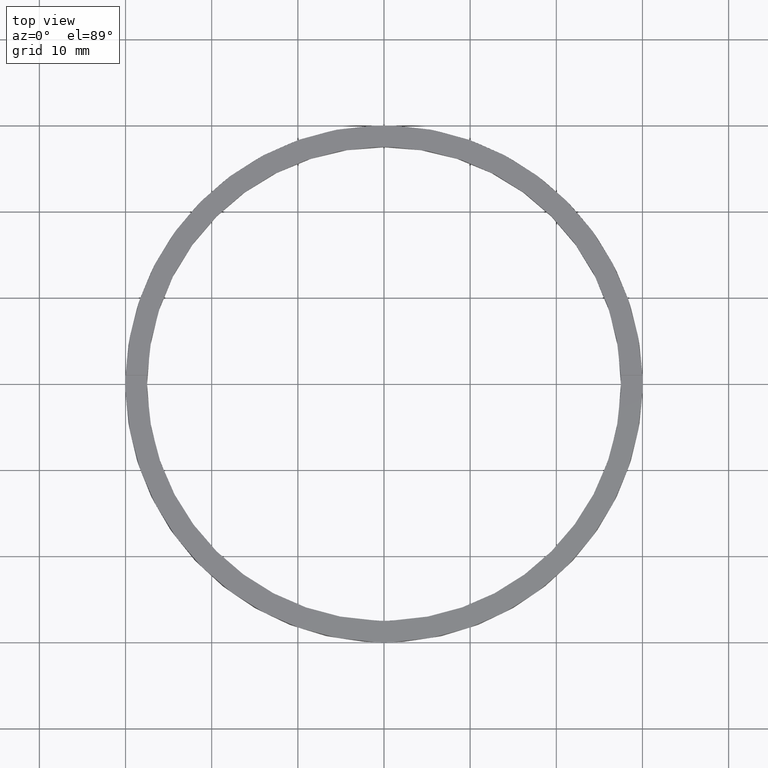
[diagram: clean part render]
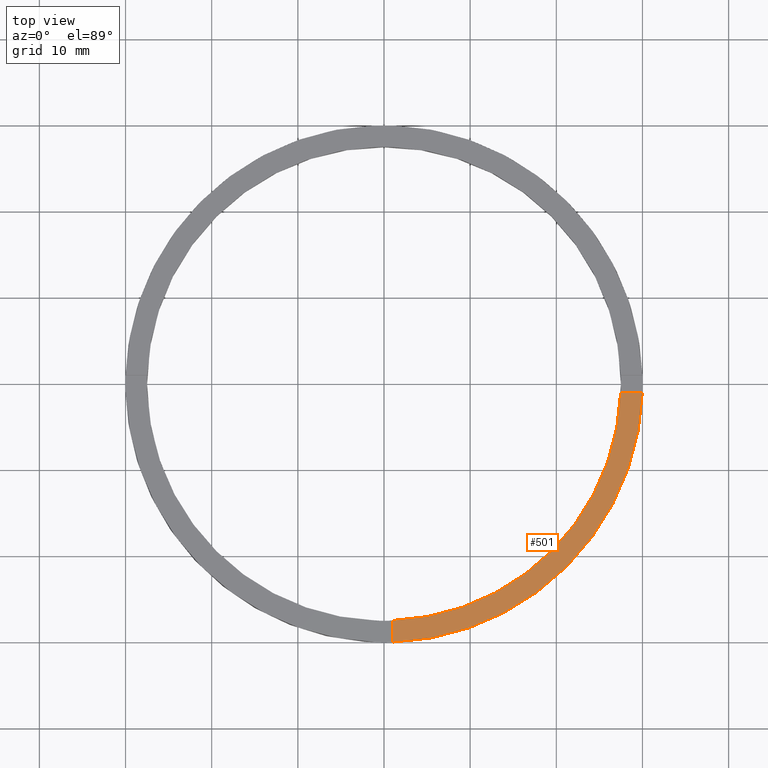
[diagram: same view with one face highlighted and labeled with its STEP entity id]
A machine part, top view. The second image highlights one B-rep face of the part: STEP entity #501.
In plain terms, the highlighted planar face has unit normal (0, 0, 1).
Its self-contained STEP definition (entity closure, byte-faithful):
#32 = CARTESIAN_POINT ( 'NONE',  ( 0.000000000000000000, 0.000000000000000000, 3.000000000000000000 ) ) ;
#57 = EDGE_CURVE ( 'NONE', #380, #435, #680, .T. ) ;
#91 = CARTESIAN_POINT ( 'NONE',  ( 0.000000000000000000, 0.000000000000000000, 3.000000000000000000 ) ) ;
#115 = DIRECTION ( 'NONE',  ( 1.000000000000000000, 0.000000000000000000, 0.000000000000000000 ) ) ;
#116 = DIRECTION ( 'NONE',  ( 0.000000000000000000, 0.000000000000000000, 1.000000000000000000 ) ) ;
#121 = PLANE ( 'NONE',  #470 ) ;
#134 = EDGE_CURVE ( 'NONE', #225, #670, #184, .T. ) ;
#173 = CARTESIAN_POINT ( 'NONE',  ( 0.000000000000000000, 0.000000000000000000, 3.000000000000000000 ) ) ;
#184 = CIRCLE ( 'NONE', #337, 30.00000000000000000 ) ;
#201 = CARTESIAN_POINT ( 'NONE',  ( 0.9999999999998397948, -20.00000000000017764, 3.000000000000000000 ) ) ;
#225 = VERTEX_POINT ( 'NONE', #228 ) ;
#228 = CARTESIAN_POINT ( 'NONE',  ( 0.9999999999998411271, -29.98332870112990278, 3.000000000000000000 ) ) ;
#245 = VECTOR ( 'NONE', #354, 1000.000000000000000 ) ;
#255 = FACE_OUTER_BOUND ( 'NONE', #407, .T. ) ;
#281 = CARTESIAN_POINT ( 'NONE',  ( 0.9999999999998406830, -27.48181216732259458, 3.000000000000000000 ) ) ;
#313 = LINE ( 'NONE', #201, #245 ) ;
#323 = DIRECTION ( 'NONE',  ( 1.000000000000000000, 0.000000000000000000, -0.000000000000000000 ) ) ;
#333 = EDGE_CURVE ( 'NONE', #435, #670, #478, .T. ) ;
#337 = AXIS2_PLACEMENT_3D ( 'NONE', #32, #494, #115 ) ;
#342 = CARTESIAN_POINT ( 'NONE',  ( 19.99999999999999289, -1.000000000000156763, 3.000000000000000000 ) ) ;
#354 = DIRECTION ( 'NONE',  ( -1.301042606982605074E-16, 1.000000000000000000, -0.000000000000000000 ) ) ;
#364 = ORIENTED_EDGE ( 'NONE', *, *, #333, .F. ) ;
#380 = VERTEX_POINT ( 'NONE', #281 ) ;
#401 = EDGE_CURVE ( 'NONE', #225, #380, #313, .T. ) ;
#405 = DIRECTION ( 'NONE',  ( 1.000000000000000000, 0.000000000000000000, 0.000000000000000000 ) ) ;
#407 = EDGE_LOOP ( 'NONE', ( #364, #495, #507, #499 ) ) ;
#435 = VERTEX_POINT ( 'NONE', #597 ) ;
#470 = AXIS2_PLACEMENT_3D ( 'NONE', #173, #116, #323 ) ;
#472 = AXIS2_PLACEMENT_3D ( 'NONE', #91, #783, #405 ) ;
#478 = LINE ( 'NONE', #342, #733 ) ;
#494 = DIRECTION ( 'NONE',  ( 0.000000000000000000, 0.000000000000000000, 1.000000000000000000 ) ) ;
#495 = ORIENTED_EDGE ( 'NONE', *, *, #57, .F. ) ;
#499 = ORIENTED_EDGE ( 'NONE', *, *, #134, .T. ) ;
#501 = ADVANCED_FACE ( 'NONE', ( #255 ), #121, .T. ) ;
#507 = ORIENTED_EDGE ( 'NONE', *, *, #401, .F. ) ;
#516 = DIRECTION ( 'NONE',  ( 1.000000000000000000, 6.505213034913025371E-17, 0.000000000000000000 ) ) ;
#571 = CARTESIAN_POINT ( 'NONE',  ( 29.98332870112989212, -1.000000000000156097, 3.000000000000000000 ) ) ;
#597 = CARTESIAN_POINT ( 'NONE',  ( 27.48181216732258392, -1.000000000000156319, 3.000000000000000000 ) ) ;
#670 = VERTEX_POINT ( 'NONE', #571 ) ;
#680 = CIRCLE ( 'NONE', #472, 27.50000000000000000 ) ;
#733 = VECTOR ( 'NONE', #516, 1000.000000000000000 ) ;
#783 = DIRECTION ( 'NONE',  ( 0.000000000000000000, 0.000000000000000000, 1.000000000000000000 ) ) ;